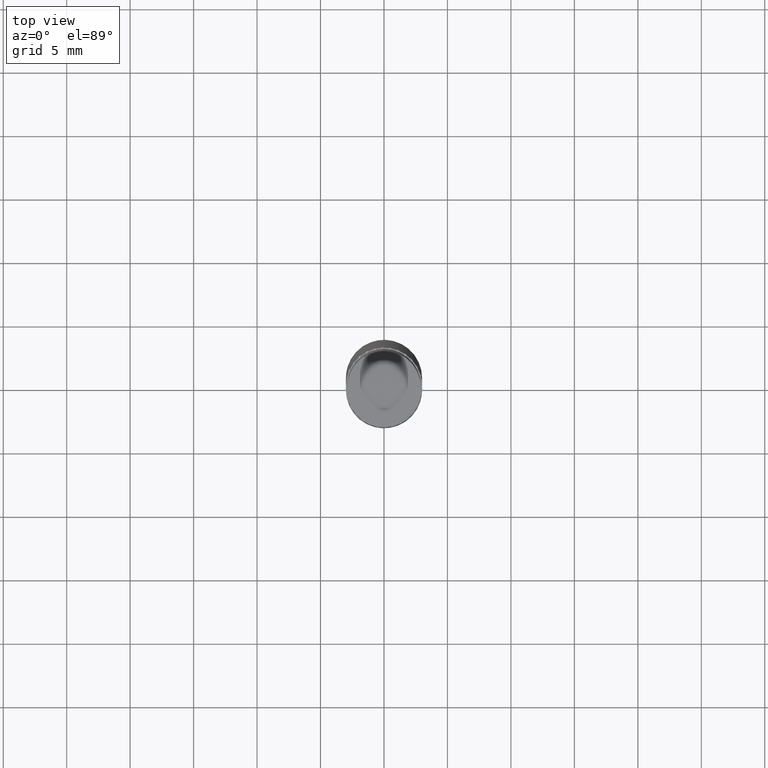
[diagram: clean part render]
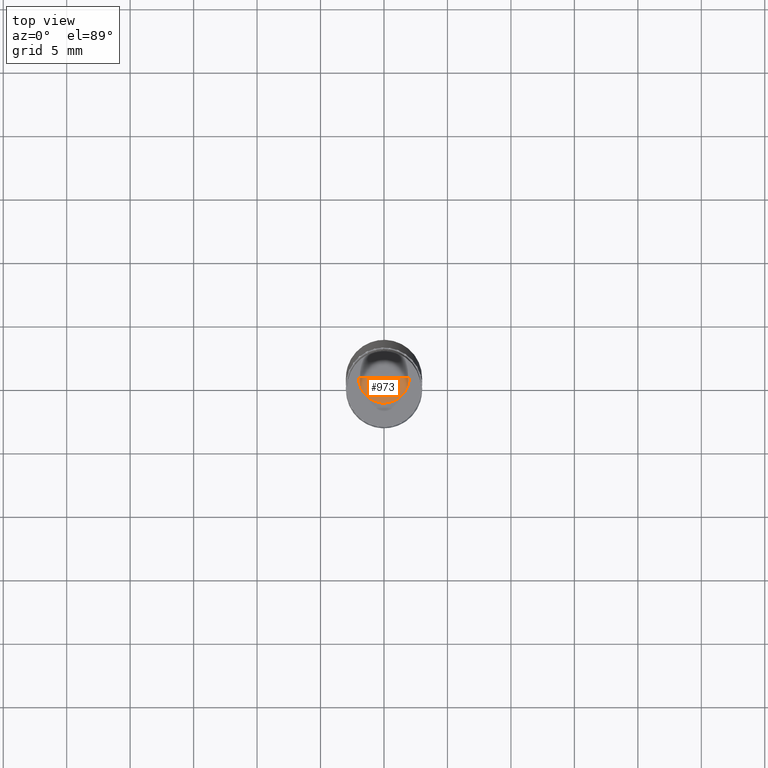
[diagram: same view with one face highlighted and labeled with its STEP entity id]
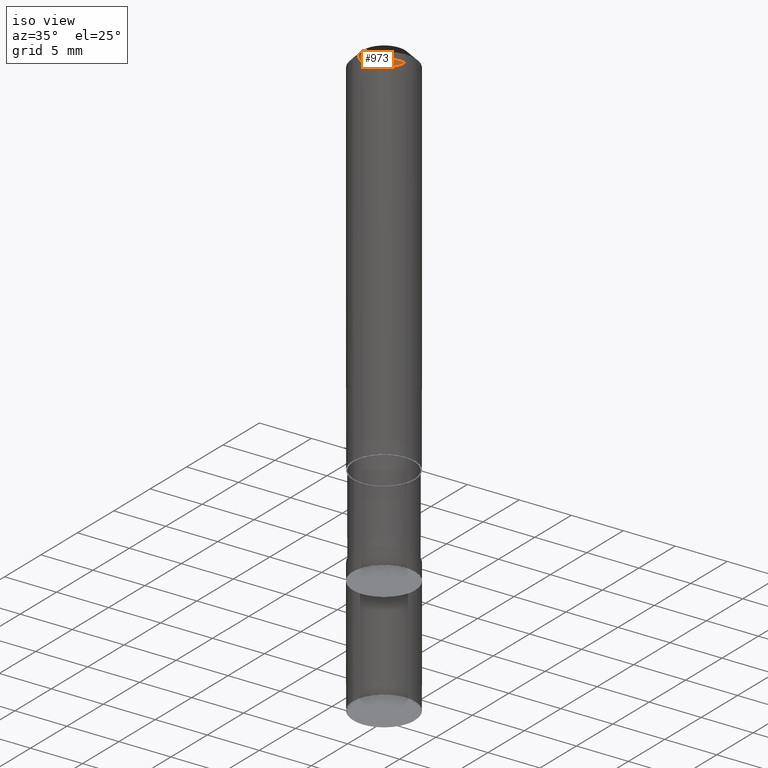
[diagram: same view with one face highlighted and labeled with its STEP entity id]
A machine part, top view. The second image highlights one B-rep face of the part: STEP entity #973.
A second angle (iso view) of the same face is appended — the face is thin or edge-on in the first view.
In plain terms, the highlighted face is a freeform B-spline surface patch.
Its self-contained STEP definition (entity closure, byte-faithful):
#493=CARTESIAN_POINT('',(2.0,0.0,36.0));
#497=CARTESIAN_POINT('',(-2.0,0.0,36.0));
#498=CARTESIAN_POINT('',(0.0,0.0,36.0));
#514=CARTESIAN_POINT('',(-2.0,-2.0,36.0));
#515=CARTESIAN_POINT('',(0.0,-2.0,36.0));
#516=CARTESIAN_POINT('',(2.0,-2.0,36.0));
#958=(
BOUNDED_SURFACE()
B_SPLINE_SURFACE(1,2,(
(#497,#514,#515,#516,#493),
(#498,#498,#498,#498,#498)
), .UNSPECIFIED.,.F.,.F.,.F.)
B_SPLINE_SURFACE_WITH_KNOTS((2,2),(3,2,3),(
0.0,1.0),(
0.0,0.5,1.0), .UNSPECIFIED.)
GEOMETRIC_REPRESENTATION_ITEM()
RATIONAL_B_SPLINE_SURFACE(((1.0,0.707106781187,1.0,0.707106781187,1.0),
(1.0,0.707106781187,1.0,0.707106781187,1.0)
))
REPRESENTATION_ITEM('')
SURFACE()
);
#959=(
BOUNDED_CURVE()
B_SPLINE_CURVE(2,(#493,#516,#515,#514,#497),.UNSPECIFIED.,.F.,.F.)
B_SPLINE_CURVE_WITH_KNOTS((3,2,3),
(0.0,0.5,1.0),.UNSPECIFIED.)
CURVE()
GEOMETRIC_REPRESENTATION_ITEM()
RATIONAL_B_SPLINE_CURVE((1.0,0.707106781187,1.0,0.707106781187,1.0))
REPRESENTATION_ITEM('')
);
#960=(
BOUNDED_CURVE()
B_SPLINE_CURVE(1,(#497,#498),.UNSPECIFIED.,.F.,.F.)
B_SPLINE_CURVE_WITH_KNOTS((2,2),
(0.0,1.0),.UNSPECIFIED.)
CURVE()
GEOMETRIC_REPRESENTATION_ITEM()
RATIONAL_B_SPLINE_CURVE((1.0,1.0))
REPRESENTATION_ITEM('')
);
#961=(
BOUNDED_CURVE()
B_SPLINE_CURVE(1,(#498,#493),.UNSPECIFIED.,.F.,.F.)
B_SPLINE_CURVE_WITH_KNOTS((2,2),
(0.0,1.0),.UNSPECIFIED.)
CURVE()
GEOMETRIC_REPRESENTATION_ITEM()
RATIONAL_B_SPLINE_CURVE((1.0,1.0))
REPRESENTATION_ITEM('')
);
#962=VERTEX_POINT('',#493);
#963=VERTEX_POINT('',#497);
#964=VERTEX_POINT('',#498);
#965=EDGE_CURVE('',#962,#963,#959,.T.);
#966=EDGE_CURVE('',#963,#964,#960,.T.);
#967=EDGE_CURVE('',#964,#962,#961,.T.);
#968=ORIENTED_EDGE('',*,*,#965,.T.);
#969=ORIENTED_EDGE('',*,*,#966,.T.);
#970=ORIENTED_EDGE('',*,*,#967,.T.);
#971=EDGE_LOOP('',(#968,#969,#970));
#972=FACE_OUTER_BOUND('',#971,.T.);
#973=ADVANCED_FACE('',(#972),#958,.T.);